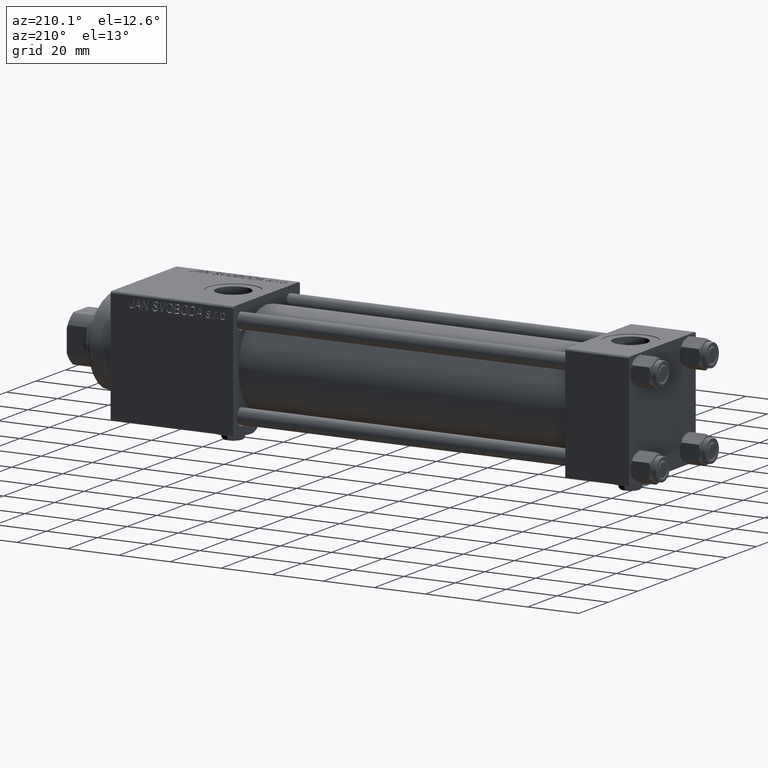
[diagram: clean part render]
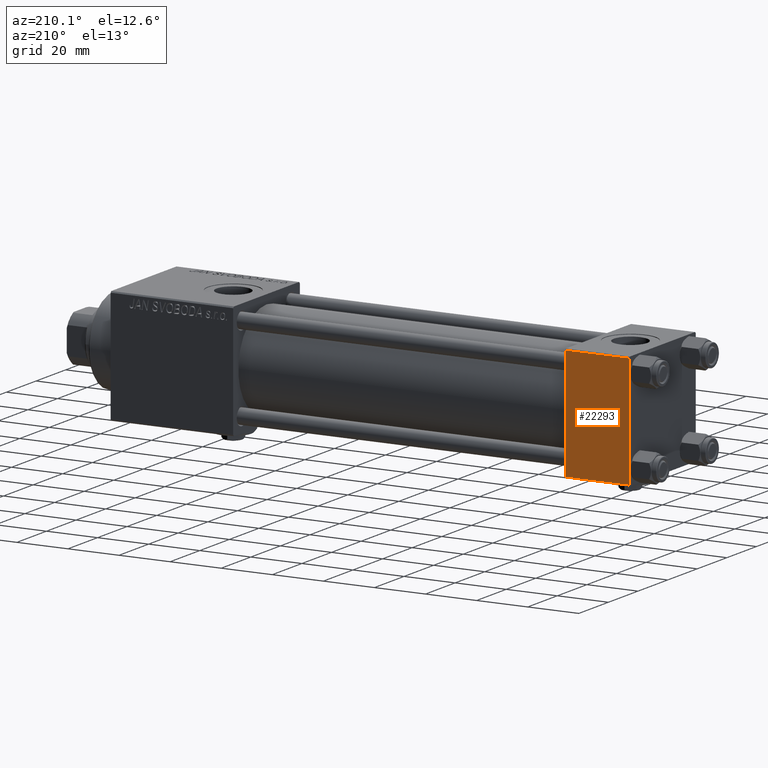
[diagram: same view with one face highlighted and labeled with its STEP entity id]
A machine part, auxiliary view. The second image highlights one B-rep face of the part: STEP entity #22293.
In plain terms, the highlighted planar face has unit normal (0, 1, 0).
Its self-contained STEP definition (entity closure, byte-faithful):
#838 = VECTOR ( 'NONE', #44623, 1000.000000000000000 ) ;
#1786 = PLANE ( 'NONE',  #30703 ) ;
#1886 = VECTOR ( 'NONE', #3645, 1000.000000000000000 ) ;
#3645 = DIRECTION ( 'NONE',  ( 0.000000000000000000, 0.000000000000000000, -1.000000000000000000 ) ) ;
#5848 = FACE_OUTER_BOUND ( 'NONE', #17926, .T. ) ;
#7417 = VECTOR ( 'NONE', #14806, 1000.000000000000000 ) ;
#9442 = ORIENTED_EDGE ( 'NONE', *, *, #11042, .T. ) ;
#9463 = VERTEX_POINT ( 'NONE', #50503 ) ;
#9508 = ORIENTED_EDGE ( 'NONE', *, *, #23299, .F. ) ;
#11042 = EDGE_CURVE ( 'NONE', #43933, #50666, #28362, .T. ) ;
#11211 = CARTESIAN_POINT ( 'NONE',  ( 25.00000000000000000, 22.50000000000000000, 22.50000000000000355 ) ) ;
#13527 = ORIENTED_EDGE ( 'NONE', *, *, #15429, .T. ) ;
#14733 = DIRECTION ( 'NONE',  ( 0.000000000000000000, -0.000000000000000000, 1.000000000000000000 ) ) ;
#14806 = DIRECTION ( 'NONE',  ( 0.000000000000000000, 0.000000000000000000, -1.000000000000000000 ) ) ;
#15429 = EDGE_CURVE ( 'NONE', #9463, #43933, #53425, .T. ) ;
#15452 = ORIENTED_EDGE ( 'NONE', *, *, #36009, .T. ) ;
#17137 = DIRECTION ( 'NONE',  ( 1.000000000000000000, 0.000000000000000000, 0.000000000000000000 ) ) ;
#17926 = EDGE_LOOP ( 'NONE', ( #13527, #9442, #9508, #15452 ) ) ;
#20827 = VECTOR ( 'NONE', #17137, 1000.000000000000000 ) ;
#22293 = ADVANCED_FACE ( 'NONE', ( #5848 ), #1786, .T. ) ;
#23299 = EDGE_CURVE ( 'NONE', #47508, #50666, #27807, .T. ) ;
#24465 = LINE ( 'NONE', #44802, #20827 ) ;
#27807 = LINE ( 'NONE', #48127, #7417 ) ;
#28362 = LINE ( 'NONE', #28878, #838 ) ;
#28878 = CARTESIAN_POINT ( 'NONE',  ( 25.00000000000000000, 22.50000000000000000, -21.99999999999998224 ) ) ;
#30363 = CARTESIAN_POINT ( 'NONE',  ( 25.00000000000000000, 22.50000000000000000, -21.99999999999996803 ) ) ;
#30703 = AXIS2_PLACEMENT_3D ( 'NONE', #39375, #51575, #14733 ) ;
#32827 = CARTESIAN_POINT ( 'NONE',  ( 0.000000000000000000, 22.50000000000000000, -21.99999999999996803 ) ) ;
#36009 = EDGE_CURVE ( 'NONE', #47508, #9463, #24465, .T. ) ;
#37667 = CARTESIAN_POINT ( 'NONE',  ( 0.000000000000000000, 22.50000000000000000, 21.99999999999999645 ) ) ;
#39375 = CARTESIAN_POINT ( 'NONE',  ( 25.00000000000000000, 22.50000000000000000, 22.50000000000000355 ) ) ;
#43933 = VERTEX_POINT ( 'NONE', #30363 ) ;
#44623 = DIRECTION ( 'NONE',  ( -1.000000000000000000, 0.000000000000000000, 0.000000000000000000 ) ) ;
#44802 = CARTESIAN_POINT ( 'NONE',  ( 25.00000000000000000, 22.50000000000000000, 21.99999999999999645 ) ) ;
#47508 = VERTEX_POINT ( 'NONE', #37667 ) ;
#48127 = CARTESIAN_POINT ( 'NONE',  ( 0.000000000000000000, 22.50000000000000000, 22.50000000000000355 ) ) ;
#50503 = CARTESIAN_POINT ( 'NONE',  ( 25.00000000000000000, 22.50000000000000000, 21.99999999999999645 ) ) ;
#50666 = VERTEX_POINT ( 'NONE', #32827 ) ;
#51575 = DIRECTION ( 'NONE',  ( -0.000000000000000000, 1.000000000000000000, 0.000000000000000000 ) ) ;
#53425 = LINE ( 'NONE', #11211, #1886 ) ;